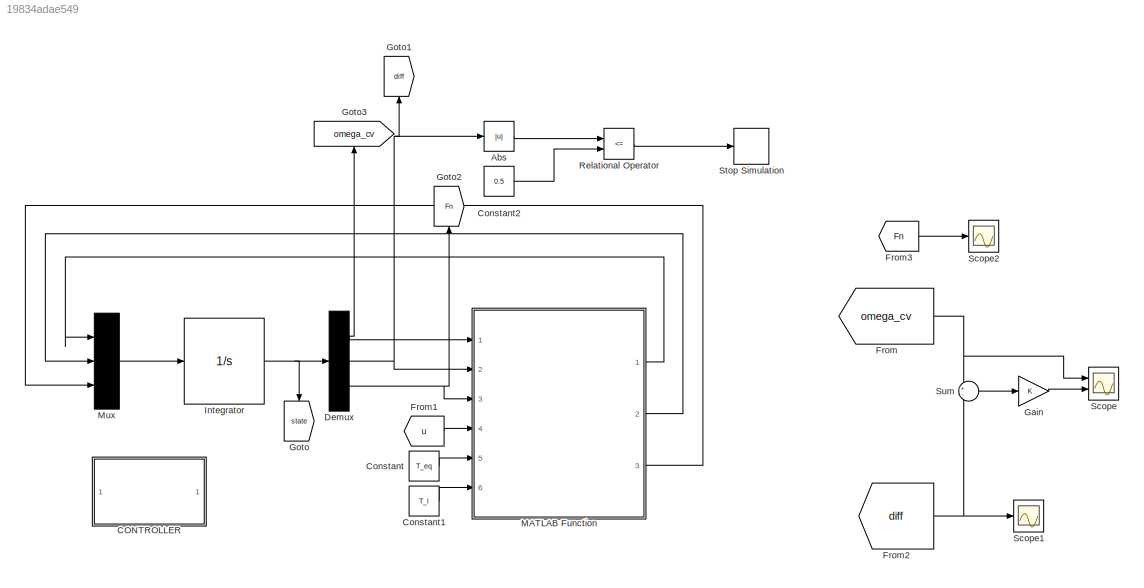
MODEL slx_19834adae549
KIND model
CONFIG AbsTol = auto
CONFIG EnableMultiTasking = off
CONFIG FixedStep = 0.01
CONFIG MaxStep = auto
CONFIG MinStep = auto
CONFIG RelTol = 1e-3
CONFIG SampleTimeConstraint = Unconstrained
CONFIG Solver = ode45
CONFIG SolverName = ode45
CONFIG StartTime = 0.0
CONFIG StopTime = 0.7
BLOCK [Abs] Abs
  SaturateOnIntegerOverflow = off
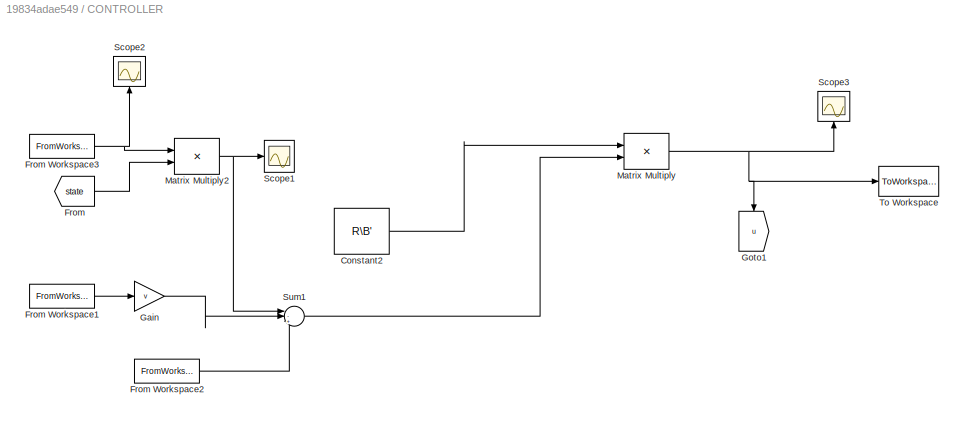
BLOCK [SubSystem] CONTROLLER
  Ports = []
  RequestExecContextInheritance = off
BLOCK [Constant] CONTROLLER/Constant2
  Value = R\B'
  VectorParams1D = off
BLOCK [From] CONTROLLER/From
  GotoTag = state
  TagVisibility = global
BLOCK [FromWorkspace] CONTROLLER/From Workspace1
  SampleTime = 0
  VariableName = sigM
  ZeroCross = on
BLOCK [FromWorkspace] CONTROLLER/From Workspace2
  SampleTime = 0
  VariableName = sigh
  ZeroCross = on
BLOCK [FromWorkspace] CONTROLLER/From Workspace3
  SampleTime = 0
  VariableName = sigP
  ZeroCross = on
BLOCK [Gain] CONTROLLER/Gain
  Gain = v
  OutDataTypeStr = Inherit: Inherit via internal rule
  ParamDataTypeStr = Inherit: Inherit via internal rule
  SaturateOnIntegerOverflow = off
BLOCK [Goto] CONTROLLER/Goto1
  GotoTag = u
  TagVisibility = global
BLOCK [Product] CONTROLLER/Matrix Multiply
  InputSameDT = off
  Multiplication = Matrix(*)
  OutDataTypeStr = Inherit: Inherit via internal rule
  Ports = [2, 1]
  RndMeth = Floor
  SaturateOnIntegerOverflow = off
BLOCK [Product] CONTROLLER/Matrix Multiply2
  InputSameDT = off
  Multiplication = Matrix(*)
  OutDataTypeStr = Inherit: Inherit via internal rule
  Ports = [2, 1]
  RndMeth = Floor
  SaturateOnIntegerOverflow = off
BLOCK [Scope] CONTROLLER/Scope1
  Floating = off
  NumInputPorts = 1
  Ports = [1]
  ScopeSpecificationString = Simulink.scopes.TimeScopeBlockCfg('CurrentConfiguration', extmgr.ConfigurationSet(extmgr.Configuration('Core','General UI',true),extmgr.Configuration('Core','Source UI',true),extmgr.Configuration('Sources','WiredSimulink',true,'DataLoggingVariableName','ScopeData2'),extmgr.Configuration('Visuals','Time Domain',true,'SerializedDisplays',{struct('MinYLimReal','-153847.79076','MaxYLimReal','1116719.9...<+1461ch>
BLOCK [Scope] CONTROLLER/Scope2
  Floating = off
  NumInputPorts = 1
  Ports = [1]
  ScopeSpecificationString = Simulink.scopes.TimeScopeBlockCfg('CurrentConfiguration', extmgr.ConfigurationSet(extmgr.Configuration('Core','General UI',true),extmgr.Configuration('Core','Source UI',true),extmgr.Configuration('Sources','WiredSimulink',true,'DataLoggingVariableName','ScopeData1'),extmgr.Configuration('Visuals','Time Domain',true,'SerializedDisplays',{struct('MinYLimReal','-2.53797','MaxYLimReal','6.29331','YLab...<+1563ch>
BLOCK [Scope] CONTROLLER/Scope3
  Floating = off
  NumInputPorts = 1
  Ports = [1]
  ScopeSpecificationString = Simulink.scopes.TimeScopeBlockCfg('CurrentConfiguration', extmgr.ConfigurationSet(extmgr.Configuration('Core','General UI',true),extmgr.Configuration('Core','Source UI',true),extmgr.Configuration('Sources','WiredSimulink',true,'DataLoggingVariableName','ScopeData1'),extmgr.Configuration('Visuals','Time Domain',true,'SerializedDisplays',{struct('MinYLimReal','-136.44442','MaxYLimReal','649.16596','...<+1415ch>
BLOCK [Sum] CONTROLLER/Sum1
  IconShape = round
  InputSameDT = off
  Inputs = |-++
  OutDataTypeStr = Inherit: Inherit via internal rule
  Ports = [3, 1]
  SaturateOnIntegerOverflow = off
BLOCK [ToWorkspace] CONTROLLER/To Workspace
  FixptAsFi = on
  MaxDataPoints = inf
  Ports = [1]
  SampleTime = -1
  VariableName = check
BLOCK [Constant] Constant
  Value = T_eq
BLOCK [Constant] Constant1
  Value = T_l
BLOCK [Constant] Constant2
  Value = 0.5
BLOCK [Demux] Demux
  DisplayOption = bar
  Outputs = 3
  Ports = [1, 3]
BLOCK [From] From
  GotoTag = omega_cv
BLOCK [From] From1
  GotoTag = u
  TagVisibility = global
BLOCK [From] From2
  GotoTag = diff
BLOCK [From] From3
  GotoTag = Fn
BLOCK [Gain] Gain
  OutDataTypeStr = Inherit: Inherit via internal rule
  ParamDataTypeStr = Inherit: Inherit via internal rule
  SaturateOnIntegerOverflow = off
BLOCK [Goto] Goto
  GotoTag = state
  TagVisibility = global
BLOCK [Goto] Goto1
  GotoTag = diff
BLOCK [Goto] Goto2
  GotoTag = Fn
BLOCK [Goto] Goto3
  GotoTag = omega_cv
BLOCK [Integrator] Integrator
  InitialCondition = x_0
  Ports = [1, 1]
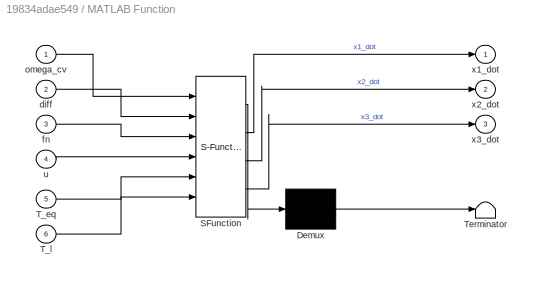
BLOCK [SubSystem] MATLAB Function
  ErrorFcn = Stateflow.Translate.translate
  PermitHierarchicalResolution = ExplicitOnly
  Ports = [6, 3]
  RequestExecContextInheritance = off
  SFBlockType = MATLAB Function
  TreatAsAtomicUnit = on
BLOCK [Demux] MATLAB Function/ Demux 
  DisplayOption = bar
  Outputs = 1
  Ports = [1, 1]
BLOCK [S-Function] MATLAB Function/ SFunction 
  EnableBusSupport = on
  FunctionName = sf_sfun
  Parameters = Jc,Jeq,b_ck,b_cv,k
  PortCounts = [6 4]
  Ports = [6, 4]
  SFcnIsStateOwnerBlock = off
  SFunctionDeploymentMode = off
  Tag = Stateflow S-Function prova_2019a 2
BLOCK [Terminator] MATLAB Function/ Terminator 
BLOCK [Inport] MATLAB Function/T_eq
  IconDisplay = Port number
  Port = 5
BLOCK [Inport] MATLAB Function/T_l
  IconDisplay = Port number
  Port = 6
BLOCK [Inport] MATLAB Function/diff
  IconDisplay = Port number
  Port = 2
BLOCK [Inport] MATLAB Function/fn
  IconDisplay = Port number
  Port = 3
BLOCK [Inport] MATLAB Function/omega_cv
  IconDisplay = Port number
BLOCK [Inport] MATLAB Function/u
  IconDisplay = Port number
  Port = 4
BLOCK [Outport] MATLAB Function/x1_dot
  IconDisplay = Port number
  VectorParamsAs1DForOutWhenUnconnected = on
BLOCK [Outport] MATLAB Function/x2_dot
  IconDisplay = Port number
  Port = 2
  VectorParamsAs1DForOutWhenUnconnected = on
BLOCK [Outport] MATLAB Function/x3_dot
  IconDisplay = Port number
  Port = 3
  VectorParamsAs1DForOutWhenUnconnected = on
BLOCK [Mux] Mux
  DisplayOption = bar
  Inputs = 3
  Ports = [3, 1]
BLOCK [RelationalOperator] Relational Operator
  InputSameDT = off
  Operator = <=
  OutDataTypeStr = boolean
  Ports = [2, 1]
  RndMeth = Simplest
BLOCK [Scope] Scope
  Floating = off
  NumInputPorts = 2
  Ports = [2]
  ScopeSpecificationString = Simulink.scopes.TimeScopeBlockCfg('CurrentConfiguration', extmgr.ConfigurationSet(extmgr.Configuration('Core','General UI',true,'FigureColor',[1 1 1]),extmgr.Configuration('Core','Source UI',true),extmgr.Configuration('Sources','WiredSimulink',true),extmgr.Configuration('Visuals','Time Domain',true,'SerializedDisplays',{struct('MinYLimReal','-26.25','MaxYLimReal','236.25','YLabelReal','','MinYLimM...<+1697ch>
BLOCK [Scope] Scope1
  Floating = off
  NumInputPorts = 1
  Ports = [1]
  ScopeSpecificationString = Simulink.scopes.TimeScopeBlockCfg('CurrentConfiguration', extmgr.ConfigurationSet(extmgr.Configuration('Core','General UI',true),extmgr.Configuration('Core','Source UI',true),extmgr.Configuration('Sources','WiredSimulink',true,'DataLoggingVariableName','ScopeData1'),extmgr.Configuration('Visuals','Time Domain',true,'SerializedDisplays',{struct('MinYLimReal','-449.80402','MaxYLimReal','3593.04546',...<+1484ch>
BLOCK [Scope] Scope2
  Floating = off
  NumInputPorts = 1
  Ports = [1]
  ScopeSpecificationString = Simulink.scopes.TimeScopeBlockCfg('CurrentConfiguration', extmgr.ConfigurationSet(extmgr.Configuration('Core','General UI',true),extmgr.Configuration('Core','Source UI',true),extmgr.Configuration('Sources','WiredSimulink',true,'DataLoggingVariableName','ScopeData2'),extmgr.Configuration('Visuals','Time Domain',true,'SerializedDisplays',{struct('MinYLimReal','-65.01745','MaxYLimReal','585.15704','Y...<+1451ch>
BLOCK [Stop] Stop Simulation
BLOCK [Sum] Sum
  IconShape = round
  InputSameDT = off
  Inputs = +-
  OutDataTypeStr = Inherit: Inherit via internal rule
  Ports = [2, 1]
  SaturateOnIntegerOverflow = off
LINE Abs:1 -> Relational Operator:1
LINE CONTROLLER/Constant2:1 -> CONTROLLER/Matrix Multiply:1
LINE CONTROLLER/From Workspace1:1 -> CONTROLLER/Gain:1
LINE CONTROLLER/From Workspace2:1 -> CONTROLLER/Sum1:3
NET CONTROLLER/From Workspace3:1 -> CONTROLLER/Matrix Multiply2:1, CONTROLLER/Scope2:1
LINE CONTROLLER/From:1 -> CONTROLLER/Matrix Multiply2:2
LINE CONTROLLER/Gain:1 -> CONTROLLER/Sum1:2
NET CONTROLLER/Matrix Multiply2:1 -> CONTROLLER/Scope1:1, CONTROLLER/Sum1:1
NET CONTROLLER/Matrix Multiply:1 -> CONTROLLER/Goto1:1, CONTROLLER/Scope3:1, CONTROLLER/To Workspace:1
LINE CONTROLLER/Sum1:1 -> CONTROLLER/Matrix Multiply:2
LINE Constant1:1 -> MATLAB Function:6
LINE Constant2:1 -> Relational Operator:2
LINE Constant:1 -> MATLAB Function:5
NET Demux:1 -> Goto3:1, MATLAB Function:1
NET Demux:2 -> Abs:1, Goto1:1, MATLAB Function:2
NET Demux:3 -> Goto2:1, MATLAB Function:3
LINE From1:1 -> MATLAB Function:4
NET From2:1 -> Scope1:1, Sum:2
LINE From3:1 -> Scope2:1
NET From:1 -> Scope:1, Sum:1
LINE Gain:1 -> Scope:2
NET Integrator:1 -> Demux:1, Goto:1
LINE MATLAB Function:1 -> Mux:1
LINE MATLAB Function:2 -> Mux:2
LINE MATLAB Function:3 -> Mux:3
LINE Mux:1 -> Integrator:1
LINE Relational Operator:1 -> Stop Simulation:1
LINE Sum:1 -> Gain:1
note: NET lines group one-source signal fan-out (src -> all destinations, sorted); 1:1 wires keep LINE
CHART MATLAB Function states=1 transitions=1
  STATE_LABEL 'eML_blk_kernel()'
  STATE_LABEL 'SCRIPT:\nfunction [x1_dot,x2_dot,x3_dot] = dynamics(omega_cv,diff,fn,...\n    u,T_eq,T_l,Jeq,Jc,b_cv, b_ck, k)\n\n    x1 = omega_cv;\n    x2 = diff;\n    x3 = fn;\n    %Jeq = 3;\n    x1_dot = 1/Jeq*(-b_cv*x1 + T_eq - k*x3*sign(x2));\n    x2_dot = (-b_cv/Jeq+b_ck/Jc)*x1 -(b_ck/Jc)*x2 -(k/Jeq+k/Jc)*x3*sign(x2)+...\n        T_eq/Jeq %+ T_l/Jc; \n    x3_dot = u;\n    \nend\n'
